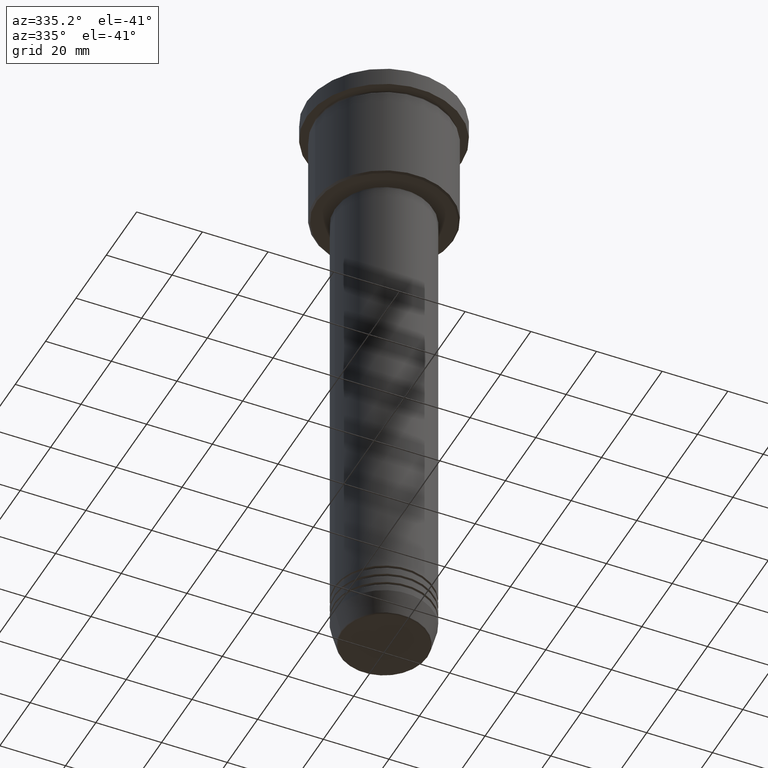
[diagram: clean part render]
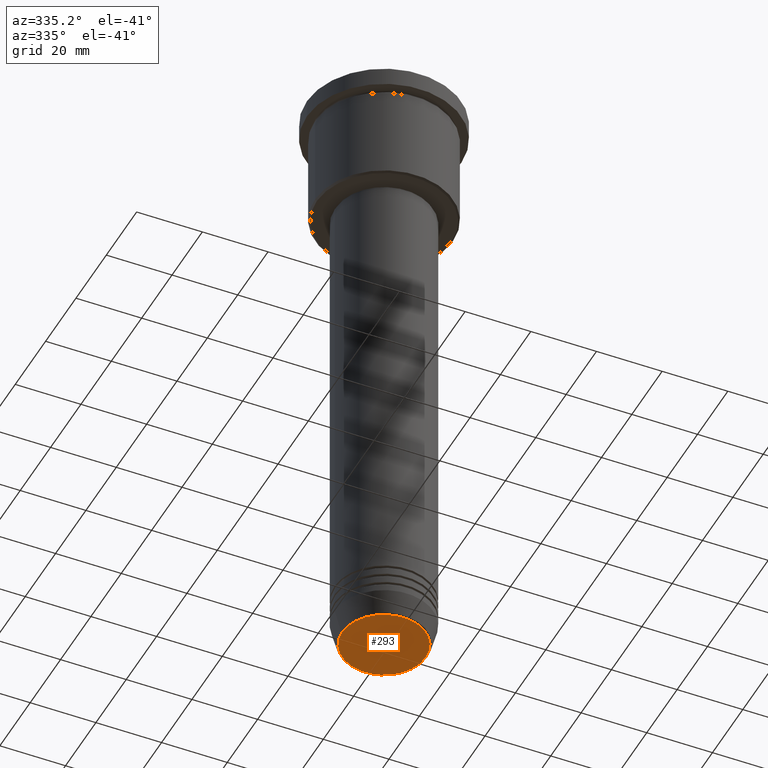
[diagram: same view with one face highlighted and labeled with its STEP entity id]
A machine part, auxiliary view. The second image highlights one B-rep face of the part: STEP entity #293.
In plain terms, the highlighted planar face has unit normal (0, -0, 1).
Its self-contained STEP definition (entity closure, byte-faithful):
#35 = VERTEX_POINT ( 'NONE', #505 ) ;
#113 = EDGE_LOOP ( 'NONE', ( #763, #689 ) ) ;
#232 = DIRECTION ( 'NONE',  ( 1.000000000000000000, 0.000000000000000000, 0.000000000000000000 ) ) ;
#264 = CARTESIAN_POINT ( 'NONE',  ( 0.000000000000000000, 0.000000000000000000, -191.0000000000000000 ) ) ;
#277 = AXIS2_PLACEMENT_3D ( 'NONE', #458, #1002, #817 ) ;
#293 = ADVANCED_FACE ( 'NONE', ( #484 ), #845, .F. ) ;
#319 = DIRECTION ( 'NONE',  ( 1.000000000000000000, 0.000000000000000000, 0.000000000000000000 ) ) ;
#403 = DIRECTION ( 'NONE',  ( 0.000000000000000000, 0.000000000000000000, -1.000000000000000000 ) ) ;
#419 = CARTESIAN_POINT ( 'NONE',  ( -12.74069215899266538, 1.589857736427681824E-15, -191.0000000000000000 ) ) ;
#458 = CARTESIAN_POINT ( 'NONE',  ( 0.000000000000000000, 0.000000000000000000, -191.0000000000000000 ) ) ;
#484 = FACE_OUTER_BOUND ( 'NONE', #113, .T. ) ;
#505 = CARTESIAN_POINT ( 'NONE',  ( 12.74069215899266538, 0.000000000000000000, -191.0000000000000000 ) ) ;
#566 = AXIS2_PLACEMENT_3D ( 'NONE', #755, #403, #319 ) ;
#689 = ORIENTED_EDGE ( 'NONE', *, *, #1004, .T. ) ;
#711 = VERTEX_POINT ( 'NONE', #419 ) ;
#755 = CARTESIAN_POINT ( 'NONE',  ( 0.000000000000000000, 0.000000000000000000, -191.0000000000000000 ) ) ;
#763 = ORIENTED_EDGE ( 'NONE', *, *, #933, .T. ) ;
#817 = DIRECTION ( 'NONE',  ( 1.000000000000000000, 0.000000000000000000, 0.000000000000000000 ) ) ;
#845 = PLANE ( 'NONE',  #1109 ) ;
#902 = CIRCLE ( 'NONE', #277, 12.74069215899266538 ) ;
#933 = EDGE_CURVE ( 'NONE', #35, #711, #902, .T. ) ;
#952 = DIRECTION ( 'NONE',  ( 0.000000000000000000, -0.000000000000000000, 1.000000000000000000 ) ) ;
#1002 = DIRECTION ( 'NONE',  ( 0.000000000000000000, 0.000000000000000000, -1.000000000000000000 ) ) ;
#1004 = EDGE_CURVE ( 'NONE', #711, #35, #1097, .T. ) ;
#1097 = CIRCLE ( 'NONE', #566, 12.74069215899266538 ) ;
#1109 = AXIS2_PLACEMENT_3D ( 'NONE', #264, #952, #232 ) ;